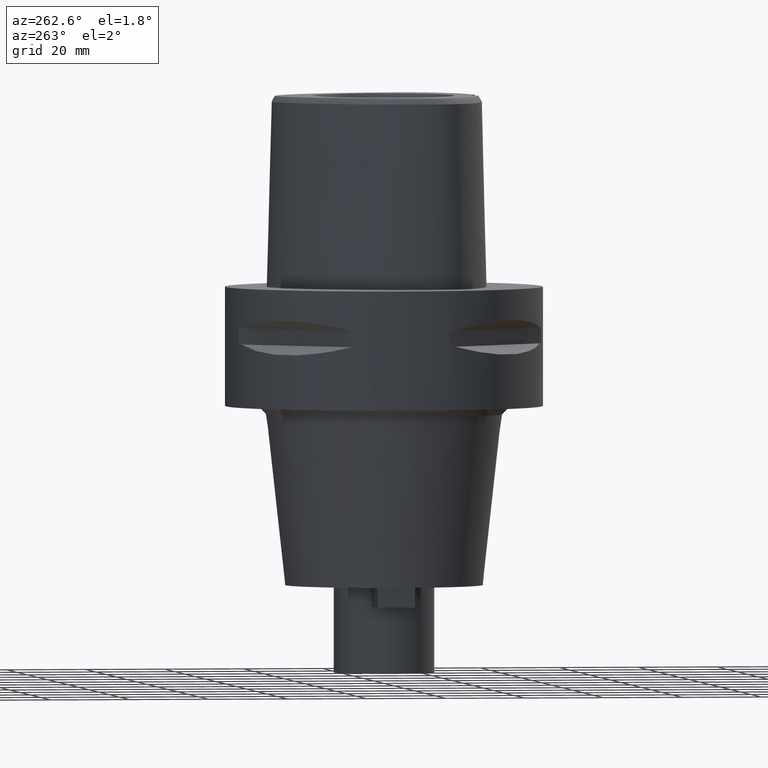
[diagram: clean part render]
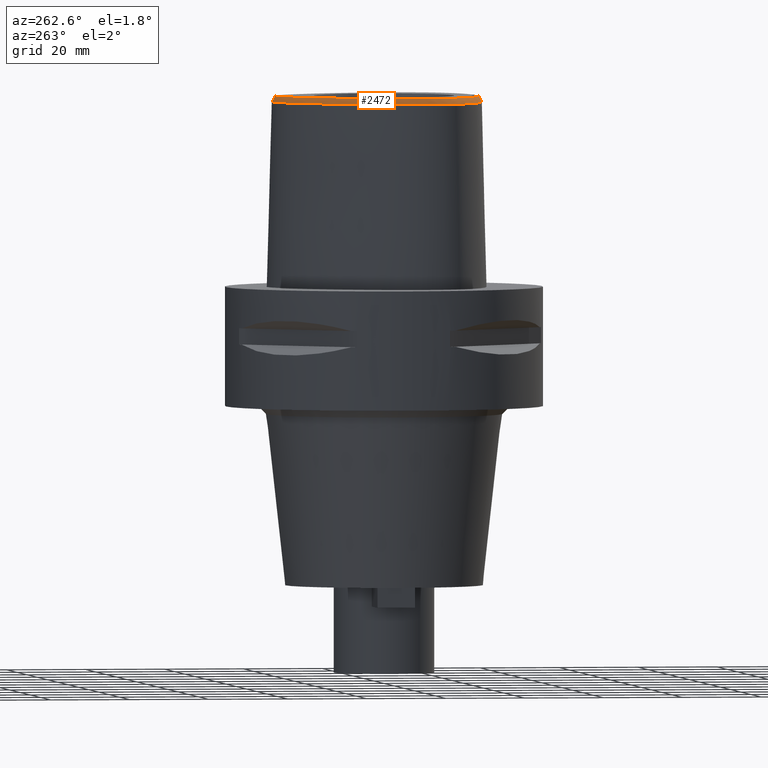
[diagram: same view with one face highlighted and labeled with its STEP entity id]
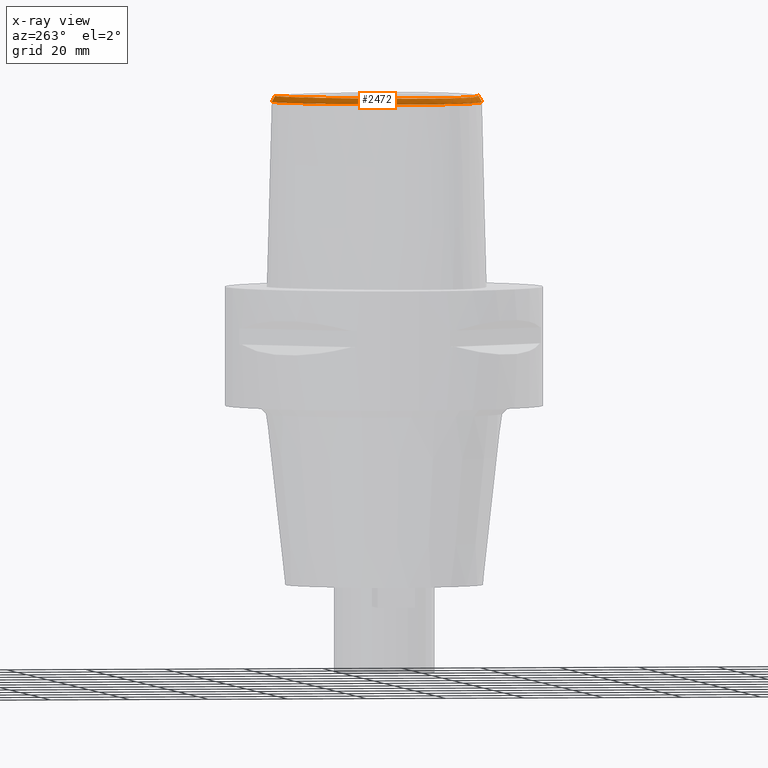
[diagram: x-ray of the same camera — body ghosted, the highlighted face saturated]
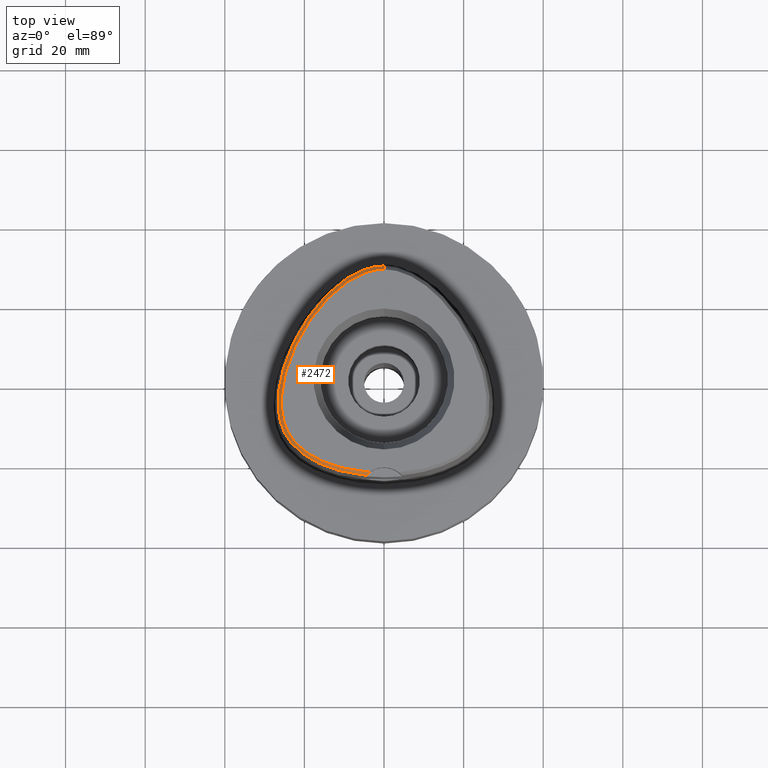
[diagram: same view with one face highlighted and labeled with its STEP entity id]
A machine part, auxiliary view. The second image highlights one B-rep face of the part: STEP entity #2472.
The next image is the same camera in x-ray: the body ghosted, the highlighted face saturated — about 0% of this face is hidden behind the body in this view.
A second angle (top view) of the same face is appended — the face is thin or edge-on in the first view.
In plain terms, the highlighted face is a freeform B-spline surface patch.
Its self-contained STEP definition (entity closure, byte-faithful):
#26=CARTESIAN_POINT('',(-3.652529789307E0,-2.343985019792E1,4.8E1));
#27=CARTESIAN_POINT('',(-4.734449415043E0,-2.335428266839E1,4.8E1));
#28=CARTESIAN_POINT('',(-6.760576879538E0,-2.311568238081E1,4.8E1));
#29=CARTESIAN_POINT('',(-9.357841975262E0,-2.263132465779E1,4.8E1));
#30=CARTESIAN_POINT('',(-1.162145907363E1,-2.205815712624E1,4.8E1));
#31=CARTESIAN_POINT('',(-1.363186712766E1,-2.141119663563E1,4.8E1));
#32=CARTESIAN_POINT('',(-1.545581475347E1,-2.069021119784E1,4.8E1));
#33=CARTESIAN_POINT('',(-1.712322064822E1,-1.989342771576E1,4.8E1));
#34=CARTESIAN_POINT('',(-1.865130168698E1,-1.901869219035E1,4.8E1));
#35=CARTESIAN_POINT('',(-2.008372952289E1,-1.803192366131E1,4.8E1));
#36=CARTESIAN_POINT('',(-2.134169990380E1,-1.697661687527E1,4.8E1));
#37=CARTESIAN_POINT('',(-2.238155429402E1,-1.591256031619E1,4.8E1));
#38=CARTESIAN_POINT('',(-2.323669303613E1,-1.484113371973E1,4.8E1));
#39=CARTESIAN_POINT('',(-2.393697315788E1,-1.375161274797E1,4.8E1));
#40=CARTESIAN_POINT('',(-2.452009469454E1,-1.259309845460E1,4.8E1));
#41=CARTESIAN_POINT('',(-2.501154261310E1,-1.130574710720E1,4.8E1));
#42=CARTESIAN_POINT('',(-2.540437631377E1,-9.853948615238E0,4.8E1));
#43=CARTESIAN_POINT('',(-2.567553640251E1,-8.229569184670E0,4.8E1));
#44=CARTESIAN_POINT('',(-2.580089857235E1,-6.504948819033E0,4.8E1));
#45=CARTESIAN_POINT('',(-2.578305903581E1,-4.726210409365E0,4.8E1));
#46=CARTESIAN_POINT('',(-2.562736413384E1,-2.879675835792E0,4.8E1));
#47=CARTESIAN_POINT('',(-2.532722184138E1,-9.296550119429E-1,4.8E1));
#48=CARTESIAN_POINT('',(-2.486711117405E1,1.149327640208E0,4.8E1));
#49=CARTESIAN_POINT('',(-2.421598699194E1,3.406180005374E0,4.8E1));
#50=CARTESIAN_POINT('',(-2.331276163005E1,5.922877537905E0,4.8E1));
#51=CARTESIAN_POINT('',(-2.206889657772E1,8.769394914394E0,4.8E1));
#52=CARTESIAN_POINT('',(-2.043136640676E1,1.186957680320E1,4.8E1));
#53=CARTESIAN_POINT('',(-1.855806645694E1,1.483097990744E1,4.8E1));
#54=CARTESIAN_POINT('',(-1.672262478258E1,1.730767112996E1,4.8E1));
#55=CARTESIAN_POINT('',(-1.498416249989E1,1.935042435871E1,4.8E1));
#56=CARTESIAN_POINT('',(-1.335017262452E1,2.103691184794E1,4.8E1));
#57=CARTESIAN_POINT('',(-1.179259650464E1,2.245475523253E1,4.8E1));
#58=CARTESIAN_POINT('',(-1.025831378567E1,2.367991433266E1,4.8E1));
#59=CARTESIAN_POINT('',(-8.726748430050E0,2.473823305818E1,4.8E1));
#60=CARTESIAN_POINT('',(-7.190000863204E0,2.563783339545E1,4.8E1));
#61=CARTESIAN_POINT('',(-5.642854313055E0,2.637898606741E1,4.8E1));
#62=CARTESIAN_POINT('',(-4.113641042331E0,2.694496886942E1,4.8E1));
#63=CARTESIAN_POINT('',(-2.662430514266E0,2.732440639261E1,4.8E1));
#64=CARTESIAN_POINT('',(-1.304891080141E0,2.753736302311E1,4.8E1));
#65=CARTESIAN_POINT('',(-4.283332432404E-1,2.758331912251E1,4.8E1));
#66=CARTESIAN_POINT('',(-2.553408000977E-11,2.758331912251E1,4.8E1));
#187=CARTESIAN_POINT('',(-3.652529789307E0,-2.343985019792E1,4.8E1));
#188=CARTESIAN_POINT('',(-3.751331103999E0,-2.351566183414E1,4.785119493584E1));
#189=CARTESIAN_POINT('',(-3.943784348194E0,-2.367312844953E1,4.754288953504E1));
#190=CARTESIAN_POINT('',(-4.216088805994E0,-2.392555730079E1,4.705143883690E1));
#191=CARTESIAN_POINT('',(-4.388567413733E0,-2.410656365344E1,4.670112127711E1));
#192=CARTESIAN_POINT('',(-4.472216406693E0,-2.420008985674E1,4.652070903171E1));
#197=CARTESIAN_POINT('',(-4.472216406693E0,-2.420008985674E1,4.652070903171E1));
#198=CARTESIAN_POINT('',(-5.535079913525E0,-2.409834636367E1,4.652067798742E1));
#199=CARTESIAN_POINT('',(-7.535595257883E0,-2.383081048525E1,4.652073781250E1));
#200=CARTESIAN_POINT('',(-1.009307845785E1,-2.331390936801E1,4.652070625638E1));
#201=CARTESIAN_POINT('',(-1.233471018789E1,-2.271209935797E1,4.652071928825E1));
#202=CARTESIAN_POINT('',(-1.435036654405E1,-2.203135642315E1,4.652071943964E1));
#203=CARTESIAN_POINT('',(-1.619307667877E1,-2.126999841162E1,4.652071671385E1));
#204=CARTESIAN_POINT('',(-1.788331347372E1,-2.042814453401E1,4.652071968170E1));
#205=CARTESIAN_POINT('',(-1.945535962634E1,-1.948913566345E1,4.652071715150E1));
#206=CARTESIAN_POINT('',(-2.090395454495E1,-1.844437692539E1,4.652071817073E1));
#207=CARTESIAN_POINT('',(-2.214939259759E1,-1.735352740852E1,4.652071779296E1));
#208=CARTESIAN_POINT('',(-2.319114740546E1,-1.624464701558E1,4.652072111417E1));
#209=CARTESIAN_POINT('',(-2.405077292770E1,-1.512522284559E1,4.652072273070E1));
#210=CARTESIAN_POINT('',(-2.475815044172E1,-1.398223285114E1,4.652071975250E1));
#211=CARTESIAN_POINT('',(-2.535403952562E1,-1.275498324401E1,4.652071183143E1));
#212=CARTESIAN_POINT('',(-2.585545021544E1,-1.138820077608E1,4.652072122850E1));
#213=CARTESIAN_POINT('',(-2.624771183551E1,-9.875479468949E0,4.652071783765E1));
#214=CARTESIAN_POINT('',(-2.651846621658E1,-8.164311115071E0,4.652072296803E1));
#215=CARTESIAN_POINT('',(-2.663464419349E1,-6.356717812980E0,4.652071358778E1));
#216=CARTESIAN_POINT('',(-2.660265805671E1,-4.512989598004E0,4.652072646558E1));
#217=CARTESIAN_POINT('',(-2.642810854328E1,-2.594725756626E0,4.652071595232E1));
#218=CARTESIAN_POINT('',(-2.610483033800E1,-5.805663036551E-1,
4.652071510822E1));
#219=CARTESIAN_POINT('',(-2.561698099087E1,1.563241255968E0,4.652072159184E1));
#220=CARTESIAN_POINT('',(-2.492848842552E1,3.896544844351E0,4.652070167691E1));
#221=CARTESIAN_POINT('',(-2.397831630212E1,6.493213675477E0,4.652072651957E1));
#222=CARTESIAN_POINT('',(-2.266928276933E1,9.432293451404E0,4.652069367661E1));
#223=CARTESIAN_POINT('',(-2.098526523257E1,1.256401138798E1,4.652072589834E1));
#224=CARTESIAN_POINT('',(-1.908911206528E1,1.552038082199E1,4.652068202500E1));
#225=CARTESIAN_POINT('',(-1.722770370653E1,1.800369853507E1,4.652072763469E1));
#226=CARTESIAN_POINT('',(-1.546291389105E1,2.005580697405E1,4.652070862034E1));
#227=CARTESIAN_POINT('',(-1.379712542896E1,2.175766165293E1,4.652072125478E1));
#228=CARTESIAN_POINT('',(-1.221448106099E1,2.318423791974E1,4.652072841709E1));
#229=CARTESIAN_POINT('',(-1.063617369661E1,2.443223519402E1,4.652071389124E1));
#230=CARTESIAN_POINT('',(-9.052824528799E0,2.551385900241E1,4.652072506753E1));
#231=CARTESIAN_POINT('',(-7.452548821259E0,2.643764698259E1,4.652071441583E1));
#232=CARTESIAN_POINT('',(-5.840501792544E0,2.719596897785E1,4.652072037619E1));
#233=CARTESIAN_POINT('',(-4.254904064548E0,2.776933914548E1,4.652071717695E1));
#234=CARTESIAN_POINT('',(-2.761676504870E0,2.815072437796E1,4.652072095270E1));
#235=CARTESIAN_POINT('',(-1.343303657169E0,2.836665663468E1,4.652067425526E1));
#236=CARTESIAN_POINT('',(-4.481964876174E-1,2.841206021535E1,4.652071719450E1));
#237=CARTESIAN_POINT('',(-1.223001322119E-11,2.841206021535E1,
4.652071719451E1));
#242=DIRECTION('',(-7.846188514281E-12,-4.887572309465E-1,8.724198353989E-1));
#243=VECTOR('',#242,1.695608863382E0);
#244=CARTESIAN_POINT('',(-1.223001322119E-11,2.841206021535E1,
4.652071719451E1));
#245=LINE('',#244,#243);
#249=CARTESIAN_POINT('',(-4.472216406693E0,-2.420008985674E1,4.652070903171E1));
#1665=CARTESIAN_POINT('',(-3.652529789305E0,-2.343985019792E1,4.8E1));
#1667=VERTEX_POINT('',#1665);
#1668=VERTEX_POINT('',#66);
#1677=VERTEX_POINT('',#249);
#1678=CARTESIAN_POINT('',(-1.223001322119E-11,2.841206021535E1,
4.652071719451E1));
#1679=VERTEX_POINT('',#1678);
#2188=CARTESIAN_POINT('',(7.466069216988E-1,2.745334291710E1,4.819371091577E1));
#2189=CARTESIAN_POINT('',(7.674076098570E-1,2.780130290755E1,4.757146718056E1));
#2190=CARTESIAN_POINT('',(7.882082980152E-1,2.814926289801E1,4.694922344535E1));
#2191=CARTESIAN_POINT('',(8.090089861733E-1,2.849722288846E1,4.632697971014E1));
#2192=CARTESIAN_POINT('',(4.903277045905E-1,2.746753243232E1,4.819371083759E1));
#2193=CARTESIAN_POINT('',(5.042737484171E-1,2.781592123558E1,4.757146735352E1));
#2194=CARTESIAN_POINT('',(5.182197922436E-1,2.816431003884E1,4.694922386944E1));
#2195=CARTESIAN_POINT('',(5.321658360701E-1,2.851269884211E1,4.632698038537E1));
#2196=CARTESIAN_POINT('',(1.151458979582E-2,2.748164836880E1,4.819371078905E1));
#2197=CARTESIAN_POINT('',(1.193231143036E-2,2.783044848185E1,4.757146746090E1));
#2198=CARTESIAN_POINT('',(1.235003306490E-2,2.817924859490E1,4.694922413274E1));
#2199=CARTESIAN_POINT('',(1.276775469945E-2,2.852804870795E1,4.632698080459E1));
#2200=CARTESIAN_POINT('',(-6.860010820696E-1,2.746186836527E1,
4.819371085707E1));
#2201=CARTESIAN_POINT('',(-7.058091631440E-1,2.781009212909E1,
4.757146731043E1));
#2202=CARTESIAN_POINT('',(-7.256172442185E-1,2.815831589292E1,
4.694922376379E1));
#2203=CARTESIAN_POINT('',(-7.454253252930E-1,2.850653965674E1,
4.632698021715E1));
#2204=CARTESIAN_POINT('',(-1.394266279870E0,2.740199068678E1,4.819371091494E1));
#2205=CARTESIAN_POINT('',(-1.433606975677E0,2.774854709656E1,4.757146718242E1));
#2206=CARTESIAN_POINT('',(-1.472947671484E0,2.809510350634E1,4.694922344989E1));
#2207=CARTESIAN_POINT('',(-1.512288367291E0,2.844165991613E1,4.632697971736E1));
#2208=CARTESIAN_POINT('',(-2.120923449380E0,2.729924018866E1,4.819371088489E1));
#2209=CARTESIAN_POINT('',(-2.179484367010E0,2.764306715611E1,4.757146724889E1));
#2210=CARTESIAN_POINT('',(-2.238045284640E0,2.798689412356E1,4.694922361289E1));
#2211=CARTESIAN_POINT('',(-2.296606202270E0,2.833072109101E1,4.632697997689E1));
#2212=CARTESIAN_POINT('',(-2.871916166066E0,2.715044772134E1,4.819371078571E1));
#2213=CARTESIAN_POINT('',(-2.949265079591E0,2.749053589601E1,4.757146746831E1));
#2214=CARTESIAN_POINT('',(-3.026613993116E0,2.783062407068E1,4.694922415090E1));
#2215=CARTESIAN_POINT('',(-3.103962906641E0,2.817071224535E1,4.632698083350E1));
#2216=CARTESIAN_POINT('',(-3.649150572515E0,2.695189218618E1,4.819371074691E1));
#2217=CARTESIAN_POINT('',(-3.744788500558E0,2.728729141626E1,4.757146755411E1));
#2218=CARTESIAN_POINT('',(-3.840426428600E0,2.762269064635E1,4.694922436131E1));
#2219=CARTESIAN_POINT('',(-3.936064356643E0,2.795808987644E1,4.632698116851E1));
#2220=CARTESIAN_POINT('',(-4.454662236392E0,2.669936883638E1,4.819371077713E1));
#2221=CARTESIAN_POINT('',(-4.568027615858E0,2.702919261436E1,4.757146748729E1));
#2222=CARTESIAN_POINT('',(-4.681392995324E0,2.735901639233E1,4.694922419744E1));
#2223=CARTESIAN_POINT('',(-4.794758374790E0,2.768884017030E1,4.632698090760E1));
#2224=CARTESIAN_POINT('',(-5.290048430414E0,2.638817601212E1,4.819371083221E1));
#2225=CARTESIAN_POINT('',(-5.420526176041E0,2.671160622274E1,4.757146736543E1));
#2226=CARTESIAN_POINT('',(-5.551003921669E0,2.703503643335E1,4.694922389864E1));
#2227=CARTESIAN_POINT('',(-5.681481667297E0,2.735846664396E1,4.632698043186E1));
#2228=CARTESIAN_POINT('',(-6.157778673526E0,2.601260934599E1,4.819371077452E1));
#2229=CARTESIAN_POINT('',(-6.304711808008E0,2.632889726299E1,4.757146749305E1));
#2230=CARTESIAN_POINT('',(-6.451644942491E0,2.664518517999E1,4.694922421157E1));
#2231=CARTESIAN_POINT('',(-6.598578076973E0,2.696147309699E1,4.632698093010E1));
#2232=CARTESIAN_POINT('',(-7.060221665527E0,2.556619108917E1,4.819371074327E1));
#2233=CARTESIAN_POINT('',(-7.222902210146E0,2.587466831585E1,4.757146756218E1));
#2234=CARTESIAN_POINT('',(-7.385582754764E0,2.618314554252E1,4.694922438109E1));
#2235=CARTESIAN_POINT('',(-7.548263299383E0,2.649162276919E1,4.63269812E1));
#2236=CARTESIAN_POINT('',(-7.996941274841E0,2.504309997249E1,4.819371081487E1));
#2237=CARTESIAN_POINT('',(-8.174654825050E0,2.534316189924E1,4.757146740379E1));
#2238=CARTESIAN_POINT('',(-8.352368375259E0,2.564322382599E1,4.694922399271E1));
#2239=CARTESIAN_POINT('',(-8.530081925468E0,2.594328575274E1,4.632698058163E1));
#2240=CARTESIAN_POINT('',(-8.968134057970E0,2.443663761515E1,4.819371082109E1));
#2241=CARTESIAN_POINT('',(-9.160159755366E0,2.472774125478E1,4.757146739001E1));
#2242=CARTESIAN_POINT('',(-9.352185452762E0,2.501884489441E1,4.694922395894E1));
#2243=CARTESIAN_POINT('',(-9.544211150157E0,2.530994853404E1,4.632698052786E1));
#2244=CARTESIAN_POINT('',(-9.973802138573E0,2.373954758759E1,4.819371084777E1));
#2245=CARTESIAN_POINT('',(-1.017939328840E1,2.402122767746E1,4.757146733103E1));
#2246=CARTESIAN_POINT('',(-1.038498443822E1,2.430290776734E1,4.694922381429E1));
#2247=CARTESIAN_POINT('',(-1.059057558804E1,2.458458785721E1,4.632698029755E1));
#2248=CARTESIAN_POINT('',(-1.101016358258E1,2.294671354801E1,4.819371084786E1));
#2249=CARTESIAN_POINT('',(-1.122860693523E1,2.321854135417E1,4.757146733081E1));
#2250=CARTESIAN_POINT('',(-1.144705028787E1,2.349036916033E1,4.694922381376E1));
#2251=CARTESIAN_POINT('',(-1.166549364051E1,2.376219696649E1,4.632698029671E1));
#2252=CARTESIAN_POINT('',(-1.207539815216E1,2.205125991424E1,4.819371054902E1));
#2253=CARTESIAN_POINT('',(-1.230596578616E1,2.231287572124E1,4.757146799192E1));
#2254=CARTESIAN_POINT('',(-1.253653342017E1,2.257449152824E1,4.694922543481E1));
#2255=CARTESIAN_POINT('',(-1.276710105417E1,2.283610733524E1,4.632698287771E1));
#2256=CARTESIAN_POINT('',(-1.316648749709E1,2.104684632585E1,4.819371034517E1));
#2257=CARTESIAN_POINT('',(-1.340847426050E1,2.129793108336E1,4.757146844287E1));
#2258=CARTESIAN_POINT('',(-1.365046102392E1,2.154901584086E1,4.694922654057E1));
#2259=CARTESIAN_POINT('',(-1.389244778733E1,2.180010059836E1,4.632698463827E1));
#2260=CARTESIAN_POINT('',(-1.427489542854E1,1.993204837845E1,4.819371040553E1));
#2261=CARTESIAN_POINT('',(-1.452762294746E1,2.017231303822E1,4.757146830932E1));
#2262=CARTESIAN_POINT('',(-1.478035046639E1,2.041257769800E1,4.694922621311E1));
#2263=CARTESIAN_POINT('',(-1.503307798531E1,2.065284235777E1,4.632698411690E1));
#2264=CARTESIAN_POINT('',(-1.539064330541E1,1.870789361025E1,4.819371072207E1));
#2265=CARTESIAN_POINT('',(-1.565345833445E1,1.893707556430E1,4.757146760909E1));
#2266=CARTESIAN_POINT('',(-1.591627336348E1,1.916625751835E1,4.694922449610E1));
#2267=CARTESIAN_POINT('',(-1.617908839252E1,1.939543947240E1,4.632698138311E1));
#2268=CARTESIAN_POINT('',(-1.650243601443E1,1.737809386530E1,4.819371088736E1));
#2269=CARTESIAN_POINT('',(-1.677473062219E1,1.759592356900E1,4.757146724341E1));
#2270=CARTESIAN_POINT('',(-1.704702522995E1,1.781375327270E1,4.694922359946E1));
#2271=CARTESIAN_POINT('',(-1.731931983771E1,1.803158297640E1,4.632697995550E1));
#2272=CARTESIAN_POINT('',(-1.760057424798E1,1.594595915041E1,4.819371076862E1));
#2273=CARTESIAN_POINT('',(-1.788173529818E1,1.615221328163E1,4.757146750612E1));
#2274=CARTESIAN_POINT('',(-1.816289634838E1,1.635846741285E1,4.694922424362E1));
#2275=CARTESIAN_POINT('',(-1.844405739858E1,1.656472154407E1,4.632698098113E1));
#2276=CARTESIAN_POINT('',(-1.867009837897E1,1.442359563E1,4.819371073102E1));
#2277=CARTESIAN_POINT('',(-1.895954437281E1,1.461804815469E1,4.757146758929E1));
#2278=CARTESIAN_POINT('',(-1.924899036665E1,1.481250067938E1,4.694922444755E1));
#2279=CARTESIAN_POINT('',(-1.953843636050E1,1.500695320406E1,4.632698130581E1));
#2280=CARTESIAN_POINT('',(-1.969195642651E1,1.283349679822E1,4.819371082160E1));
#2281=CARTESIAN_POINT('',(-1.998910604416E1,1.301595613700E1,4.757146738889E1));
#2282=CARTESIAN_POINT('',(-2.028625566182E1,1.319841547578E1,4.694922395618E1));
#2283=CARTESIAN_POINT('',(-2.058340527948E1,1.338087481456E1,4.632698052347E1));
#2284=CARTESIAN_POINT('',(-2.065358530921E1,1.119370060872E1,4.819371081422E1));
#2285=CARTESIAN_POINT('',(-2.095789281536E1,1.136395328458E1,4.757146740523E1));
#2286=CARTESIAN_POINT('',(-2.126220032151E1,1.153420596044E1,4.694922399624E1));
#2287=CARTESIAN_POINT('',(-2.156650782766E1,1.170445863630E1,4.632698058725E1));
#2288=CARTESIAN_POINT('',(-2.154508455287E1,9.521027624246E0,4.819371059231E1));
#2289=CARTESIAN_POINT('',(-2.185607540144E1,9.678745356411E0,4.757146789614E1));
#2290=CARTESIAN_POINT('',(-2.216706625001E1,9.836463088576E0,4.694922519996E1));
#2291=CARTESIAN_POINT('',(-2.247805709857E1,9.994180820742E0,4.632698250378E1));
#2292=CARTESIAN_POINT('',(-2.235790114948E1,7.832400340782E0,4.819371053712E1));
#2293=CARTESIAN_POINT('',(-2.267512520694E1,7.977178497643E0,4.757146801822E1));
#2294=CARTESIAN_POINT('',(-2.299234926440E1,8.121956654503E0,4.694922549932E1));
#2295=CARTESIAN_POINT('',(-2.330957332186E1,8.266734811364E0,4.632698298042E1));
#2296=CARTESIAN_POINT('',(-2.308144959816E1,6.153970355366E0,4.819371069210E1));
#2297=CARTESIAN_POINT('',(-2.340443208077E1,6.285407763928E0,4.757146767536E1));
#2298=CARTESIAN_POINT('',(-2.372741456337E1,6.416845172490E0,4.694922465862E1));
#2299=CARTESIAN_POINT('',(-2.405039704598E1,6.548282581053E0,4.632698164188E1));
#2300=CARTESIAN_POINT('',(-2.370913376055E1,4.511331061167E0,4.819371086187E1));
#2301=CARTESIAN_POINT('',(-2.403737457137E1,4.629031107793E0,4.757146729982E1));
#2302=CARTESIAN_POINT('',(-2.436561538219E1,4.746731154419E0,4.694922373776E1));
#2303=CARTESIAN_POINT('',(-2.469385619300E1,4.864431201045E0,4.632698017571E1));
#2304=CARTESIAN_POINT('',(-2.424231474026E1,2.915527518443E0,4.819371082721E1));
#2305=CARTESIAN_POINT('',(-2.457529105861E1,3.019085915459E0,4.757146737651E1));
#2306=CARTESIAN_POINT('',(-2.490826737696E1,3.122644312474E0,4.694922392580E1));
#2307=CARTESIAN_POINT('',(-2.524124369532E1,3.226202709490E0,4.632698047510E1));
#2308=CARTESIAN_POINT('',(-2.468302341197E1,1.378665220190E0,4.819371082247E1));
#2309=CARTESIAN_POINT('',(-2.502019050798E1,1.467651924691E0,4.757146738696E1));
#2310=CARTESIAN_POINT('',(-2.535735760399E1,1.556638629192E0,4.694922395146E1));
#2311=CARTESIAN_POINT('',(-2.56945247E1,1.645625333693E0,4.632698051595E1));
#2312=CARTESIAN_POINT('',(-2.503537827388E1,-9.096932323959E-2,
4.819371076118E1));
#2313=CARTESIAN_POINT('',(-2.537615829565E1,-1.699520031637E-2,
4.757146752256E1));
#2314=CARTESIAN_POINT('',(-2.571693831743E1,5.697892260685E-2,
4.694922428394E1));
#2315=CARTESIAN_POINT('',(-2.605771833921E1,1.309530455301E-1,
4.632698104531E1));
#2316=CARTESIAN_POINT('',(-2.530484243722E1,-1.487858720058E0,
4.819371081098E1));
#2317=CARTESIAN_POINT('',(-2.564861804666E1,-1.429335554334E0,
4.757146741241E1));
#2318=CARTESIAN_POINT('',(-2.599239365609E1,-1.370812388609E0,
4.694922401384E1));
#2319=CARTESIAN_POINT('',(-2.633616926553E1,-1.312289222884E0,
4.632698061527E1));
#2320=CARTESIAN_POINT('',(-2.549753042373E1,-2.808400783683E0,
4.819371080640E1));
#2321=CARTESIAN_POINT('',(-2.584364385641E1,-2.765789815628E0,
4.757146742253E1));
#2322=CARTESIAN_POINT('',(-2.618975728909E1,-2.723178847572E0,
4.694922403867E1));
#2323=CARTESIAN_POINT('',(-2.653587072177E1,-2.680567879517E0,
4.632698065480E1));
#2324=CARTESIAN_POINT('',(-2.562028154999E1,-4.053334184185E0,
4.819371078155E1));
#2325=CARTESIAN_POINT('',(-2.596802093721E1,-4.027044896590E0,
4.757146747750E1));
#2326=CARTESIAN_POINT('',(-2.631576032443E1,-4.000755608994E0,
4.694922417345E1));
#2327=CARTESIAN_POINT('',(-2.666349971164E1,-3.974466321398E0,
4.632698086941E1));
#2328=CARTESIAN_POINT('',(-2.567961512312E1,-5.222157634350E0,
4.819371083731E1));
#2329=CARTESIAN_POINT('',(-2.602822183429E1,-5.212602853488E0,
4.757146735415E1));
#2330=CARTESIAN_POINT('',(-2.637682854545E1,-5.203048072625E0,
4.694922387100E1));
#2331=CARTESIAN_POINT('',(-2.672543525662E1,-5.193493291763E0,
4.632698038784E1));
#2332=CARTESIAN_POINT('',(-2.568195703791E1,-6.318080544959E0,
4.819371075587E1));
#2333=CARTESIAN_POINT('',(-2.603061828991E1,-6.325646841299E0,
4.757146753430E1));
#2334=CARTESIAN_POINT('',(-2.637927954191E1,-6.333213137638E0,
4.694922431272E1));
#2335=CARTESIAN_POINT('',(-2.672794079390E1,-6.340779433978E0,
4.632698109114E1));
#2336=CARTESIAN_POINT('',(-2.563318135462E1,-7.345455384712E0,
4.819371072672E1));
#2337=CARTESIAN_POINT('',(-2.598103263466E1,-7.370462788887E0,
4.757146759880E1));
#2338=CARTESIAN_POINT('',(-2.632888391469E1,-7.395470193062E0,
4.694922447087E1));
#2339=CARTESIAN_POINT('',(-2.667673519473E1,-7.420477597237E0,
4.632698134294E1));
#2340=CARTESIAN_POINT('',(-2.553869522675E1,-8.306338712811E0,
4.819371081057E1));
#2341=CARTESIAN_POINT('',(-2.588482210242E1,-8.349074318909E0,
4.757146741330E1));
#2342=CARTESIAN_POINT('',(-2.623094897808E1,-8.391809925008E0,
4.694922401604E1));
#2343=CARTESIAN_POINT('',(-2.657707585375E1,-8.434545531106E0,
4.632698061877E1));
#2344=CARTESIAN_POINT('',(-2.540326254230E1,-9.205027647810E0,
4.819371084805E1));
#2345=CARTESIAN_POINT('',(-2.574670075273E1,-9.265726979887E0,
4.757146733039E1));
#2346=CARTESIAN_POINT('',(-2.609013896316E1,-9.326426311964E0,
4.694922381274E1));
#2347=CARTESIAN_POINT('',(-2.643357717360E1,-9.387125644041E0,
4.632698029508E1));
#2348=CARTESIAN_POINT('',(-2.523084509255E1,-1.004660328069E1,
4.819371084135E1));
#2349=CARTESIAN_POINT('',(-2.557059096501E1,-1.012541146976E1,
4.757146734521E1));
#2350=CARTESIAN_POINT('',(-2.591033683747E1,-1.020421965884E1,
4.694922384907E1));
#2351=CARTESIAN_POINT('',(-2.625008270993E1,-1.028302784791E1,
4.632698035294E1));
#2352=CARTESIAN_POINT('',(-2.502487100737E1,-1.083522291258E1,
4.819371083045E1));
#2353=CARTESIAN_POINT('',(-2.535988591235E1,-1.093221164650E1,
4.757146736930E1));
#2354=CARTESIAN_POINT('',(-2.569490081733E1,-1.102920038041E1,
4.694922390815E1));
#2355=CARTESIAN_POINT('',(-2.602991572231E1,-1.112618911432E1,
4.632698044700E1));
#2356=CARTESIAN_POINT('',(-2.478807483707E1,-1.157520320332E1,
4.819371079659E1));
#2357=CARTESIAN_POINT('',(-2.511728990073E1,-1.169036653592E1,
4.757146744422E1));
#2358=CARTESIAN_POINT('',(-2.544650496439E1,-1.180552986853E1,
4.694922409184E1));
#2359=CARTESIAN_POINT('',(-2.577572002805E1,-1.192069320113E1,
4.632698073947E1));
#2360=CARTESIAN_POINT('',(-2.452238212503E1,-1.227115297226E1,
4.819371076760E1));
#2361=CARTESIAN_POINT('',(-2.484472017317E1,-1.240436845309E1,
4.757146750836E1));
#2362=CARTESIAN_POINT('',(-2.516705822132E1,-1.253758393392E1,
4.694922424912E1));
#2363=CARTESIAN_POINT('',(-2.548939626946E1,-1.267079941475E1,
4.632698098987E1));
#2364=CARTESIAN_POINT('',(-2.422954148406E1,-1.292622231540E1,
4.819371088466E1));
#2365=CARTESIAN_POINT('',(-2.454391675085E1,-1.307728099066E1,
4.757146724939E1));
#2366=CARTESIAN_POINT('',(-2.485829201764E1,-1.322833966592E1,
4.694922361411E1));
#2367=CARTESIAN_POINT('',(-2.517266728443E1,-1.337939834117E1,
4.632697997883E1));
#2368=CARTESIAN_POINT('',(-2.391140597067E1,-1.354253766040E1,
4.819371080135E1));
#2369=CARTESIAN_POINT('',(-2.421673942763E1,-1.371113737714E1,
4.757146743372E1));
#2370=CARTESIAN_POINT('',(-2.452207288459E1,-1.387973709388E1,
4.694922406608E1));
#2371=CARTESIAN_POINT('',(-2.482740634154E1,-1.404833681062E1,
4.632698069845E1));
#2372=CARTESIAN_POINT('',(-2.356280366490E1,-1.413327486277E1,
4.819371085528E1));
#2373=CARTESIAN_POINT('',(-2.385798360603E1,-1.431907758884E1,
4.757146731438E1));
#2374=CARTESIAN_POINT('',(-2.415316354715E1,-1.450488031491E1,
4.694922377348E1));
#2375=CARTESIAN_POINT('',(-2.444834348828E1,-1.469068304098E1,
4.632698023258E1));
#2376=CARTESIAN_POINT('',(-2.317291951474E1,-1.471609441921E1,
4.819371084250E1));
#2377=CARTESIAN_POINT('',(-2.345715243601E1,-1.491823577402E1,
4.757146734266E1));
#2378=CARTESIAN_POINT('',(-2.374138535728E1,-1.512037712884E1,
4.694922384283E1));
#2379=CARTESIAN_POINT('',(-2.402561827855E1,-1.532251848365E1,
4.632698034299E1));
#2380=CARTESIAN_POINT('',(-2.273589275683E1,-1.529622368561E1,
4.819371076462E1));
#2381=CARTESIAN_POINT('',(-2.300840593036E1,-1.551390186720E1,
4.757146751497E1));
#2382=CARTESIAN_POINT('',(-2.328091910388E1,-1.573158004878E1,
4.694922426532E1));
#2383=CARTESIAN_POINT('',(-2.355343227741E1,-1.594925823036E1,
4.632698101568E1));
#2384=CARTESIAN_POINT('',(-2.224888382087E1,-1.587316453426E1,
4.819371081418E1));
#2385=CARTESIAN_POINT('',(-2.250897486405E1,-1.610553643053E1,
4.757146740531E1));
#2386=CARTESIAN_POINT('',(-2.276906590723E1,-1.633790832681E1,
4.694922399645E1));
#2387=CARTESIAN_POINT('',(-2.302915695041E1,-1.657028022309E1,
4.632698058758E1));
#2388=CARTESIAN_POINT('',(-2.170771856398E1,-1.644733545417E1,
4.819371083391E1));
#2389=CARTESIAN_POINT('',(-2.195477926263E1,-1.669350929336E1,
4.757146736168E1));
#2390=CARTESIAN_POINT('',(-2.220183996127E1,-1.693968313255E1,
4.694922388945E1));
#2391=CARTESIAN_POINT('',(-2.244890065991E1,-1.718585697175E1,
4.632698041722E1));
#2392=CARTESIAN_POINT('',(-2.110722203423E1,-1.701925417008E1,
4.819371084451E1));
#2393=CARTESIAN_POINT('',(-2.134073932171E1,-1.727830318972E1,
4.757146733821E1));
#2394=CARTESIAN_POINT('',(-2.157425660920E1,-1.753735220936E1,
4.694922383191E1));
#2395=CARTESIAN_POINT('',(-2.180777389668E1,-1.779640122900E1,
4.632698032562E1));
#2396=CARTESIAN_POINT('',(-2.044242505636E1,-1.758827103357E1,
4.819371084510E1));
#2397=CARTESIAN_POINT('',(-2.066197182911E1,-1.785925459505E1,
4.757146733691E1));
#2398=CARTESIAN_POINT('',(-2.088151860187E1,-1.813023815654E1,
4.694922382871E1));
#2399=CARTESIAN_POINT('',(-2.110106537462E1,-1.840122171803E1,
4.632698032051E1));
#2400=CARTESIAN_POINT('',(-1.970754286864E1,-1.815360688660E1,
4.819371077817E1));
#2401=CARTESIAN_POINT('',(-1.991277016906E1,-1.843558299401E1,
4.757146748498E1));
#2402=CARTESIAN_POINT('',(-2.011799746949E1,-1.871755910141E1,
4.694922419178E1));
#2403=CARTESIAN_POINT('',(-2.032322476991E1,-1.899953520881E1,
4.632698089859E1));
#2404=CARTESIAN_POINT('',(-1.889612535924E1,-1.871409911530E1,
4.819371072062E1));
#2405=CARTESIAN_POINT('',(-1.908678428520E1,-1.900611561700E1,
4.757146761230E1));
#2406=CARTESIAN_POINT('',(-1.927744321115E1,-1.929813211869E1,
4.694922450399E1));
#2407=CARTESIAN_POINT('',(-1.946810213711E1,-1.959014862038E1,
4.632698139568E1));
#2408=CARTESIAN_POINT('',(-1.800282681162E1,-1.926703281642E1,
4.819371079275E1));
#2409=CARTESIAN_POINT('',(-1.817873139288E1,-1.956816103563E1,
4.757146745271E1));
#2410=CARTESIAN_POINT('',(-1.835463597415E1,-1.986928925485E1,
4.694922411267E1));
#2411=CARTESIAN_POINT('',(-1.853054055541E1,-2.017041747407E1,
4.632698077263E1));
#2412=CARTESIAN_POINT('',(-1.702238964753E1,-1.980904353123E1,
4.819371082430E1));
#2413=CARTESIAN_POINT('',(-1.718339880222E1,-2.011838583036E1,
4.757146738290E1));
#2414=CARTESIAN_POINT('',(-1.734440795691E1,-2.042772812949E1,
4.694922394150E1));
#2415=CARTESIAN_POINT('',(-1.750541711161E1,-2.073707042862E1,
4.632698050010E1));
#2416=CARTESIAN_POINT('',(-1.594794233028E1,-2.033704415280E1,
4.819371077394E1));
#2417=CARTESIAN_POINT('',(-1.609401537704E1,-2.065370668679E1,
4.757146749432E1));
#2418=CARTESIAN_POINT('',(-1.624008842380E1,-2.097036922078E1,
4.694922421469E1));
#2419=CARTESIAN_POINT('',(-1.638616147056E1,-2.128703175477E1,
4.632698093507E1));
#2420=CARTESIAN_POINT('',(-1.477515507815E1,-2.084611601135E1,
4.819371082574E1));
#2421=CARTESIAN_POINT('',(-1.490627829837E1,-2.116925019439E1,
4.757146737973E1));
#2422=CARTESIAN_POINT('',(-1.503740151858E1,-2.149238437743E1,
4.694922393371E1));
#2423=CARTESIAN_POINT('',(-1.516852473879E1,-2.181551856048E1,
4.632698048770E1));
#2424=CARTESIAN_POINT('',(-1.350049073436E1,-2.133061912791E1,
4.819371078588E1));
#2425=CARTESIAN_POINT('',(-1.361668219036E1,-2.165941232383E1,
4.757146746791E1));
#2426=CARTESIAN_POINT('',(-1.373287364636E1,-2.198820551976E1,
4.694922414995E1));
#2427=CARTESIAN_POINT('',(-1.384906510236E1,-2.231699871568E1,
4.632698083198E1));
#2428=CARTESIAN_POINT('',(-1.212058968375E1,-2.178467399378E1,
4.819371078204E1));
#2429=CARTESIAN_POINT('',(-1.222192774126E1,-2.211833971827E1,
4.757146747642E1));
#2430=CARTESIAN_POINT('',(-1.232326579876E1,-2.245200544276E1,
4.694922417080E1));
#2431=CARTESIAN_POINT('',(-1.242460385627E1,-2.278567116725E1,
4.632698086518E1));
#2432=CARTESIAN_POINT('',(-1.063679972348E1,-2.220077155917E1,
4.819371082546E1));
#2433=CARTESIAN_POINT('',(-1.072335149887E1,-2.253857052952E1,
4.757146738035E1));
#2434=CARTESIAN_POINT('',(-1.080990327426E1,-2.287636949987E1,
4.694922393525E1));
#2435=CARTESIAN_POINT('',(-1.089645504965E1,-2.321416847022E1,
4.632698049014E1));
#2436=CARTESIAN_POINT('',(-9.051615697962E0,-2.257145387828E1,
4.819371082515E1));
#2437=CARTESIAN_POINT('',(-9.123490721748E0,-2.291267337958E1,
4.757146738105E1));
#2438=CARTESIAN_POINT('',(-9.195365745534E0,-2.325389288088E1,
4.694922393695E1));
#2439=CARTESIAN_POINT('',(-9.267240769320E0,-2.359511238218E1,
4.632698049285E1));
#2440=CARTESIAN_POINT('',(-7.372222152268E0,-2.288878622312E1,
4.819371083254E1));
#2441=CARTESIAN_POINT('',(-7.429507820095E0,-2.323275282278E1,
4.757146736469E1));
#2442=CARTESIAN_POINT('',(-7.486793487922E0,-2.357671942244E1,
4.694922389685E1));
#2443=CARTESIAN_POINT('',(-7.544079155749E0,-2.392068602210E1,
4.632698042900E1));
#2444=CARTESIAN_POINT('',(-5.608119985182E0,-2.314531646252E1,
4.819371065967E1));
#2445=CARTESIAN_POINT('',(-5.650919515394E0,-2.349138146916E1,
4.757146774715E1));
#2446=CARTESIAN_POINT('',(-5.693719045606E0,-2.383744647579E1,
4.694922483462E1));
#2447=CARTESIAN_POINT('',(-5.736518575819E0,-2.418351148242E1,
4.632698192210E1));
#2448=CARTESIAN_POINT('',(-4.344205172281E0,-2.327539547412E1,
4.819371061860E1));
#2449=CARTESIAN_POINT('',(-4.377094505565E0,-2.362247650374E1,
4.757146783800E1));
#2450=CARTESIAN_POINT('',(-4.409983838849E0,-2.396955753336E1,
4.694922505740E1));
#2451=CARTESIAN_POINT('',(-4.442873172133E0,-2.431663856299E1,
4.632698227680E1));
#2452=CARTESIAN_POINT('',(-3.427936504106E0,-2.334909625144E1,
4.819371063457E1));
#2453=CARTESIAN_POINT('',(-3.453759908234E0,-2.369674550893E1,
4.757146780265E1));
#2454=CARTESIAN_POINT('',(-3.479583312362E0,-2.404439476643E1,
4.694922497073E1));
#2455=CARTESIAN_POINT('',(-3.505406716490E0,-2.439204402393E1,
4.632698213880E1));
#2456=CARTESIAN_POINT('',(-3.130093482986E0,-2.337010227297E1,
4.819371064598E1));
#2457=CARTESIAN_POINT('',(-3.153636618069E0,-2.371791222561E1,
4.757146777740E1));
#2458=CARTESIAN_POINT('',(-3.177179753152E0,-2.406572217826E1,
4.694922490883E1));
#2459=CARTESIAN_POINT('',(-3.200722888236E0,-2.441353213091E1,
4.632698204025E1));
#2460=CARTESIAN_POINT('',(-2.871751423104E0,-2.338612242655E1,
4.819371065890E1));
#2461=CARTESIAN_POINT('',(-2.893327265960E0,-2.373405435427E1,
4.757146774882E1));
#2462=CARTESIAN_POINT('',(-2.914903108816E0,-2.408198628199E1,
4.694922483875E1));
#2463=CARTESIAN_POINT('',(-2.936478951672E0,-2.442991820971E1,
4.632698192867E1));
#2464=B_SPLINE_SURFACE_WITH_KNOTS('',3,3,((#2188,#2189,#2190,#2191),(#2192,
#2193,#2194,#2195),(#2196,#2197,#2198,#2199),(#2200,#2201,#2202,#2203),(#2204,
#2205,#2206,#2207),(#2208,#2209,#2210,#2211),(#2212,#2213,#2214,#2215),(#2216,
#2217,#2218,#2219),(#2220,#2221,#2222,#2223),(#2224,#2225,#2226,#2227),(#2228,
#2229,#2230,#2231),(#2232,#2233,#2234,#2235),(#2236,#2237,#2238,#2239),(#2240,
#2241,#2242,#2243),(#2244,#2245,#2246,#2247),(#2248,#2249,#2250,#2251),(#2252,
#2253,#2254,#2255),(#2256,#2257,#2258,#2259),(#2260,#2261,#2262,#2263),(#2264,
#2265,#2266,#2267),(#2268,#2269,#2270,#2271),(#2272,#2273,#2274,#2275),(#2276,
#2277,#2278,#2279),(#2280,#2281,#2282,#2283),(#2284,#2285,#2286,#2287),(#2288,
#2289,#2290,#2291),(#2292,#2293,#2294,#2295),(#2296,#2297,#2298,#2299),(#2300,
#2301,#2302,#2303),(#2304,#2305,#2306,#2307),(#2308,#2309,#2310,#2311),(#2312,
#2313,#2314,#2315),(#2316,#2317,#2318,#2319),(#2320,#2321,#2322,#2323),(#2324,
#2325,#2326,#2327),(#2328,#2329,#2330,#2331),(#2332,#2333,#2334,#2335),(#2336,
#2337,#2338,#2339),(#2340,#2341,#2342,#2343),(#2344,#2345,#2346,#2347),(#2348,
#2349,#2350,#2351),(#2352,#2353,#2354,#2355),(#2356,#2357,#2358,#2359),(#2360,
#2361,#2362,#2363),(#2364,#2365,#2366,#2367),(#2368,#2369,#2370,#2371),(#2372,
#2373,#2374,#2375),(#2376,#2377,#2378,#2379),(#2380,#2381,#2382,#2383),(#2384,
#2385,#2386,#2387),(#2388,#2389,#2390,#2391),(#2392,#2393,#2394,#2395),(#2396,
#2397,#2398,#2399),(#2400,#2401,#2402,#2403),(#2404,#2405,#2406,#2407),(#2408,
#2409,#2410,#2411),(#2412,#2413,#2414,#2415),(#2416,#2417,#2418,#2419),(#2420,
#2421,#2422,#2423),(#2424,#2425,#2426,#2427),(#2428,#2429,#2430,#2431),(#2432,
#2433,#2434,#2435),(#2436,#2437,#2438,#2439),(#2440,#2441,#2442,#2443),(#2444,
#2445,#2446,#2447),(#2448,#2449,#2450,#2451),(#2452,#2453,#2454,#2455),(#2456,
#2457,#2458,#2459),(#2460,#2461,#2462,#2463)),.UNSPECIFIED.,.F.,.F.,.F.,(4,1,1,
1,1,1,1,1,1,1,1,1,1,1,1,1,1,1,1,1,1,1,1,1,1,1,1,1,1,1,1,1,1,1,1,1,1,1,1,1,1,1,1,
1,1,1,1,1,1,1,1,1,1,1,1,1,1,1,1,1,1,1,1,1,1,1,4),(4,4),(-1.680919658064E-2,0.E0,
1.585674268102E-2,3.171348536242E-2,4.757022804383E-2,6.342697072523E-2,
7.928371340664E-2,9.514045608804E-2,1.109971987694E-1,1.268539414508E-1,
1.427106841322E-1,1.585674268137E-1,1.744241694951E-1,1.902809121765E-1,
2.061376548579E-1,2.219943975393E-1,2.378511402207E-1,2.537078829020E-1,
2.695646255835E-1,2.854213682649E-1,3.012781109463E-1,3.171348536277E-1,
3.329915963091E-1,3.488483389905E-1,3.647050816720E-1,3.805618243534E-1,
3.964185670348E-1,4.122753097161E-1,4.281320523975E-1,4.439887950789E-1,
4.598455377603E-1,4.757022804418E-1,4.915590231232E-1,5.074157658046E-1,
5.232725084860E-1,5.391292511674E-1,5.549859938487E-1,5.708427365302E-1,
5.866994792116E-1,6.025562218930E-1,6.184129645744E-1,6.342697072558E-1,
6.501264499372E-1,6.659831926186E-1,6.818399353001E-1,6.976966779815E-1,
7.135534206628E-1,7.294101633442E-1,7.452669060256E-1,7.611236487070E-1,
7.769803913885E-1,7.928371340699E-1,8.086938767513E-1,8.245506194327E-1,
8.404073621141E-1,8.562641047955E-1,8.721208474768E-1,8.879775901583E-1,
9.038343328397E-1,9.196910755211E-1,9.355478182025E-1,9.514045608839E-1,
9.672613035653E-1,9.831180462468E-1,9.989747889282E-1,1.E0,1.006550899226E0),(
-1.066806968137E-1,1.106688523357E0),.UNSPECIFIED.);
#2465=ORIENTED_EDGE('',*,*,#1897,.T.);
#2467=ORIENTED_EDGE('',*,*,#2466,.T.);
#2468=ORIENTED_EDGE('',*,*,#2181,.T.);
#2469=ORIENTED_EDGE('',*,*,#1870,.F.);
#2470=EDGE_LOOP('',(#2465,#2467,#2468,#2469));
#2471=FACE_OUTER_BOUND('',#2470,.F.);
#67=B_SPLINE_CURVE_WITH_KNOTS('',3,(#26,#27,#28,#29,#30,#31,#32,#33,#34,#35,#36,
#37,#38,#39,#40,#41,#42,#43,#44,#45,#46,#47,#48,#49,#50,#51,#52,#53,#54,#55,#56,
#57,#58,#59,#60,#61,#62,#63,#64,#65,#66),.UNSPECIFIED.,.F.,.F.,(4,1,1,1,1,1,1,1,
1,1,1,1,1,1,1,1,1,1,1,1,1,1,1,1,1,1,1,1,1,1,1,1,1,1,1,1,1,1,4),(0.E0,
2.631578947368E-2,5.263157894737E-2,7.894736842105E-2,1.052631578947E-1,
1.315789473684E-1,1.578947368421E-1,1.842105263158E-1,2.105263157895E-1,
2.368421052632E-1,2.631578947368E-1,2.894736842105E-1,3.157894736842E-1,
3.421052631579E-1,3.684210526316E-1,3.947368421053E-1,4.210526315789E-1,
4.473684210526E-1,4.736842105263E-1,5.E-1,5.263157894737E-1,5.526315789474E-1,
5.789473684211E-1,6.052631578947E-1,6.315789473684E-1,6.578947368421E-1,
6.842105263158E-1,7.105263157895E-1,7.368421052632E-1,7.631578947368E-1,
7.894736842105E-1,8.157894736842E-1,8.421052631579E-1,8.684210526316E-1,
8.947368421053E-1,9.210526315789E-1,9.473684210526E-1,9.736842105263E-1,1.E0),
.UNSPECIFIED.);
#193=B_SPLINE_CURVE_WITH_KNOTS('',3,(#187,#188,#189,#190,#191,#192),
.UNSPECIFIED.,.F.,.F.,(4,1,1,4),(0.E0,3.333333333333E-1,6.666666666667E-1,1.E0),
.UNSPECIFIED.);
#238=B_SPLINE_CURVE_WITH_KNOTS('',3,(#197,#198,#199,#200,#201,#202,#203,#204,
#205,#206,#207,#208,#209,#210,#211,#212,#213,#214,#215,#216,#217,#218,#219,#220,
#221,#222,#223,#224,#225,#226,#227,#228,#229,#230,#231,#232,#233,#234,#235,#236,
#237),.UNSPECIFIED.,.F.,.F.,(4,1,1,1,1,1,1,1,1,1,1,1,1,1,1,1,1,1,1,1,1,1,1,1,1,
1,1,1,1,1,1,1,1,1,1,1,1,1,4),(0.E0,2.631578947368E-2,5.263157894737E-2,
7.894736842105E-2,1.052631578947E-1,1.315789473684E-1,1.578947368421E-1,
1.842105263158E-1,2.105263157895E-1,2.368421052632E-1,2.631578947368E-1,
2.894736842105E-1,3.157894736842E-1,3.421052631579E-1,3.684210526316E-1,
3.947368421053E-1,4.210526315789E-1,4.473684210526E-1,4.736842105263E-1,5.E-1,
5.263157894737E-1,5.526315789474E-1,5.789473684211E-1,6.052631578947E-1,
6.315789473684E-1,6.578947368421E-1,6.842105263158E-1,7.105263157895E-1,
7.368421052632E-1,7.631578947368E-1,7.894736842105E-1,8.157894736842E-1,
8.421052631579E-1,8.684210526316E-1,8.947368421053E-1,9.210526315789E-1,
9.473684210526E-1,9.736842105263E-1,1.E0),.UNSPECIFIED.);
#1870=EDGE_CURVE('',#1667,#1668,#67,.T.);
#1897=EDGE_CURVE('',#1667,#1677,#193,.T.);
#2181=EDGE_CURVE('',#1679,#1668,#245,.T.);
#2466=EDGE_CURVE('',#1677,#1679,#238,.T.);
#2472=ADVANCED_FACE('',(#2471),#2464,.F.);